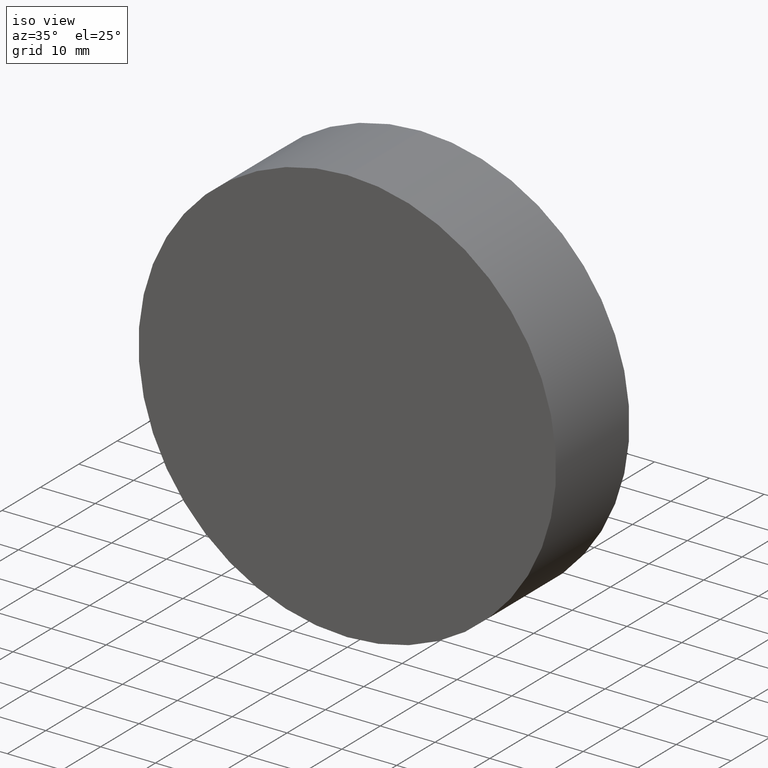
[diagram: clean part render]
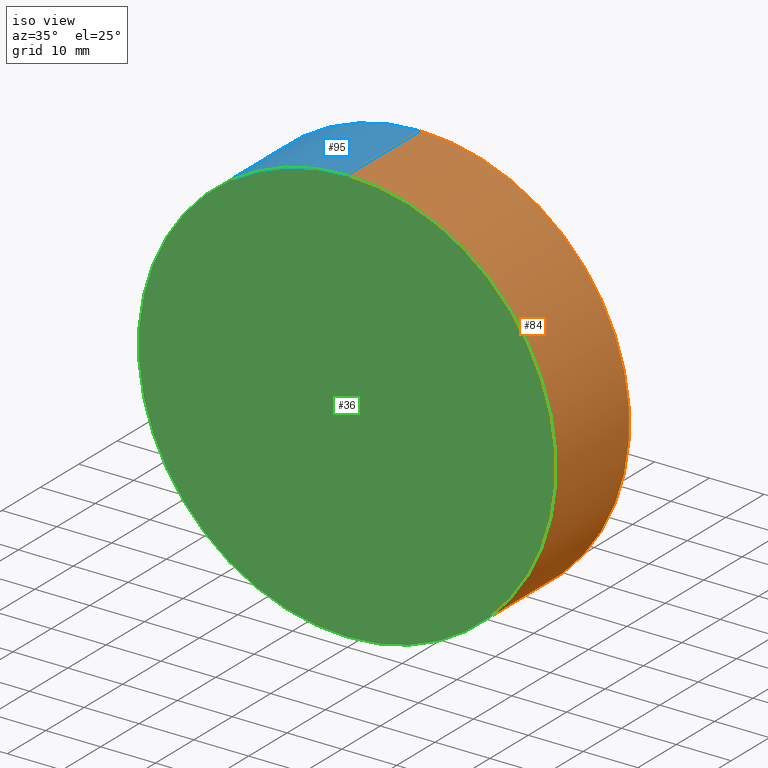
[diagram: same view with three faces highlighted in distinct colors, each labeled with its STEP entity id]
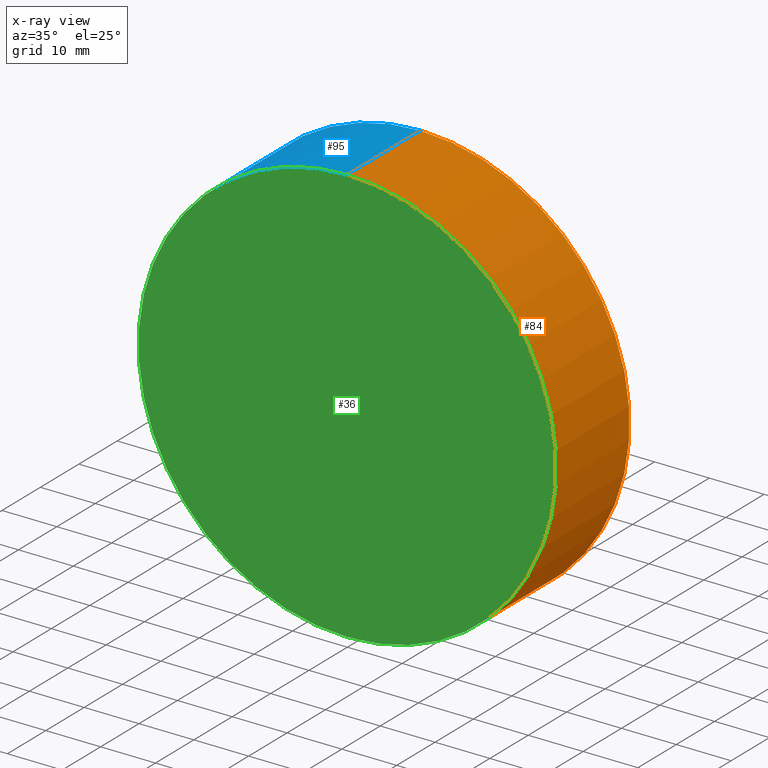
[diagram: x-ray of the same camera — body ghosted, the three highlighted faces saturated]
A machine part, iso view with three faces highlighted in distinct colors.
The next image is the same camera in x-ray (body ghosted, the three faces saturated) — at least one of them is partly hidden behind the body in this view.
Their STEP definitions:

[orange] entity #84 — the highlighted cylindrical surface (partial cylindrical patch) has radius 38.1 mm, axis along (-0, -1, -0).
#5 = DIRECTION ( 'NONE',  ( -0.0000000000000000000, -1.000000000000000000, -0.0000000000000000000 ) ) ;
#12 = VERTEX_POINT ( 'NONE', #31 ) ;
#24 = ORIENTED_EDGE ( 'NONE', *, *, #34, .T. ) ;
#25 = EDGE_CURVE ( 'NONE', #138, #96, #35, .T. ) ;
#29 = VECTOR ( 'NONE', #126, 1000.000000000000000 ) ;
#30 = CARTESIAN_POINT ( 'NONE',  ( 0.0000000000000000000, 0.0000000000000000000, 0.0000000000000000000 ) ) ;
#31 = CARTESIAN_POINT ( 'NONE',  ( 0.0000000000000000000, 0.0000000000000000000, -38.10000000000000100 ) ) ;
#34 = EDGE_CURVE ( 'NONE', #96, #12, #46, .T. ) ;
#35 = LINE ( 'NONE', #59, #99 ) ;
#41 = AXIS2_PLACEMENT_3D ( 'NONE', #120, #44, #136 ) ;
#43 = CARTESIAN_POINT ( 'NONE',  ( 0.0000000000000000000, 19.10000000000000100, -38.10000000000000100 ) ) ;
#44 = DIRECTION ( 'NONE',  ( -0.0000000000000000000, -1.000000000000000000, -0.0000000000000000000 ) ) ;
#46 = CIRCLE ( 'NONE', #49, 38.10000000000000100 ) ;
#48 = EDGE_LOOP ( 'NONE', ( #70, #131, #24, #87 ) ) ;
#49 = AXIS2_PLACEMENT_3D ( 'NONE', #30, #76, #110 ) ;
#52 = CARTESIAN_POINT ( 'NONE',  ( 4.665904304751416100E-015, 0.0000000000000000000, 38.10000000000000100 ) ) ;
#53 = DIRECTION ( 'NONE',  ( 0.0000000000000000000, 1.000000000000000000, 0.0000000000000000000 ) ) ;
#57 = LINE ( 'NONE', #79, #29 ) ;
#59 = CARTESIAN_POINT ( 'NONE',  ( 4.665904304751416100E-015, 19.10000000000000100, 38.10000000000000100 ) ) ;
#70 = ORIENTED_EDGE ( 'NONE', *, *, #71, .F. ) ;
#71 = EDGE_CURVE ( 'NONE', #138, #115, #130, .T. ) ;
#76 = DIRECTION ( 'NONE',  ( 0.0000000000000000000, 1.000000000000000000, 0.0000000000000000000 ) ) ;
#79 = CARTESIAN_POINT ( 'NONE',  ( 0.0000000000000000000, 19.10000000000000100, -38.10000000000000100 ) ) ;
#84 = ADVANCED_FACE ( 'NONE', ( #125 ), #132, .T. ) ;
#85 = DIRECTION ( 'NONE',  ( 0.0000000000000000000, 0.0000000000000000000, 1.000000000000000000 ) ) ;
#87 = ORIENTED_EDGE ( 'NONE', *, *, #129, .F. ) ;
#88 = CARTESIAN_POINT ( 'NONE',  ( 0.0000000000000000000, 19.10000000000000100, 0.0000000000000000000 ) ) ;
#90 = AXIS2_PLACEMENT_3D ( 'NONE', #88, #53, #85 ) ;
#96 = VERTEX_POINT ( 'NONE', #52 ) ;
#99 = VECTOR ( 'NONE', #5, 1000.000000000000000 ) ;
#110 = DIRECTION ( 'NONE',  ( 0.0000000000000000000, 0.0000000000000000000, 1.000000000000000000 ) ) ;
#115 = VERTEX_POINT ( 'NONE', #43 ) ;
#119 = CARTESIAN_POINT ( 'NONE',  ( 4.665904304751416100E-015, 19.10000000000000100, 38.10000000000000100 ) ) ;
#120 = CARTESIAN_POINT ( 'NONE',  ( 0.0000000000000000000, 19.10000000000000100, 0.0000000000000000000 ) ) ;
#125 = FACE_OUTER_BOUND ( 'NONE', #48, .T. ) ;
#126 = DIRECTION ( 'NONE',  ( -0.0000000000000000000, -1.000000000000000000, -0.0000000000000000000 ) ) ;
#129 = EDGE_CURVE ( 'NONE', #115, #12, #57, .T. ) ;
#130 = CIRCLE ( 'NONE', #90, 38.10000000000000100 ) ;
#131 = ORIENTED_EDGE ( 'NONE', *, *, #25, .T. ) ;
#132 = CYLINDRICAL_SURFACE ( 'NONE', #41, 38.10000000000000100 ) ;
#136 = DIRECTION ( 'NONE',  ( 0.0000000000000000000, 0.0000000000000000000, -1.000000000000000000 ) ) ;
#138 = VERTEX_POINT ( 'NONE', #119 ) ;

[blue] entity #95 — the highlighted cylindrical surface (partial cylindrical patch) has radius 38.1 mm, axis along (-0, -1, -0).
#5 = DIRECTION ( 'NONE',  ( -0.0000000000000000000, -1.000000000000000000, -0.0000000000000000000 ) ) ;
#6 = DIRECTION ( 'NONE',  ( 0.0000000000000000000, 1.000000000000000000, 0.0000000000000000000 ) ) ;
#7 = DIRECTION ( 'NONE',  ( 0.0000000000000000000, 0.0000000000000000000, 1.000000000000000000 ) ) ;
#9 = ORIENTED_EDGE ( 'NONE', *, *, #81, .F. ) ;
#12 = VERTEX_POINT ( 'NONE', #31 ) ;
#13 = CIRCLE ( 'NONE', #140, 38.10000000000000100 ) ;
#15 = CARTESIAN_POINT ( 'NONE',  ( 0.0000000000000000000, 0.0000000000000000000, 0.0000000000000000000 ) ) ;
#16 = AXIS2_PLACEMENT_3D ( 'NONE', #62, #51, #63 ) ;
#25 = EDGE_CURVE ( 'NONE', #138, #96, #35, .T. ) ;
#29 = VECTOR ( 'NONE', #126, 1000.000000000000000 ) ;
#31 = CARTESIAN_POINT ( 'NONE',  ( 0.0000000000000000000, 0.0000000000000000000, -38.10000000000000100 ) ) ;
#35 = LINE ( 'NONE', #59, #99 ) ;
#43 = CARTESIAN_POINT ( 'NONE',  ( 0.0000000000000000000, 19.10000000000000100, -38.10000000000000100 ) ) ;
#51 = DIRECTION ( 'NONE',  ( -0.0000000000000000000, -1.000000000000000000, -0.0000000000000000000 ) ) ;
#52 = CARTESIAN_POINT ( 'NONE',  ( 4.665904304751416100E-015, 0.0000000000000000000, 38.10000000000000100 ) ) ;
#54 = ORIENTED_EDGE ( 'NONE', *, *, #111, .T. ) ;
#56 = EDGE_LOOP ( 'NONE', ( #114, #9, #109, #54 ) ) ;
#57 = LINE ( 'NONE', #79, #29 ) ;
#59 = CARTESIAN_POINT ( 'NONE',  ( 4.665904304751416100E-015, 19.10000000000000100, 38.10000000000000100 ) ) ;
#61 = DIRECTION ( 'NONE',  ( 0.0000000000000000000, 0.0000000000000000000, 1.000000000000000000 ) ) ;
#62 = CARTESIAN_POINT ( 'NONE',  ( 0.0000000000000000000, 19.10000000000000100, 0.0000000000000000000 ) ) ;
#63 = DIRECTION ( 'NONE',  ( 0.0000000000000000000, 0.0000000000000000000, -1.000000000000000000 ) ) ;
#73 = CARTESIAN_POINT ( 'NONE',  ( 0.0000000000000000000, 19.10000000000000100, 0.0000000000000000000 ) ) ;
#79 = CARTESIAN_POINT ( 'NONE',  ( 0.0000000000000000000, 19.10000000000000100, -38.10000000000000100 ) ) ;
#80 = CIRCLE ( 'NONE', #124, 38.10000000000000100 ) ;
#81 = EDGE_CURVE ( 'NONE', #115, #138, #13, .T. ) ;
#82 = CYLINDRICAL_SURFACE ( 'NONE', #16, 38.10000000000000100 ) ;
#95 = ADVANCED_FACE ( 'NONE', ( #104 ), #82, .T. ) ;
#96 = VERTEX_POINT ( 'NONE', #52 ) ;
#99 = VECTOR ( 'NONE', #5, 1000.000000000000000 ) ;
#104 = FACE_OUTER_BOUND ( 'NONE', #56, .T. ) ;
#109 = ORIENTED_EDGE ( 'NONE', *, *, #129, .T. ) ;
#111 = EDGE_CURVE ( 'NONE', #12, #96, #80, .T. ) ;
#114 = ORIENTED_EDGE ( 'NONE', *, *, #25, .F. ) ;
#115 = VERTEX_POINT ( 'NONE', #43 ) ;
#117 = DIRECTION ( 'NONE',  ( 0.0000000000000000000, 1.000000000000000000, 0.0000000000000000000 ) ) ;
#119 = CARTESIAN_POINT ( 'NONE',  ( 4.665904304751416100E-015, 19.10000000000000100, 38.10000000000000100 ) ) ;
#124 = AXIS2_PLACEMENT_3D ( 'NONE', #15, #6, #7 ) ;
#126 = DIRECTION ( 'NONE',  ( -0.0000000000000000000, -1.000000000000000000, -0.0000000000000000000 ) ) ;
#129 = EDGE_CURVE ( 'NONE', #115, #12, #57, .T. ) ;
#138 = VERTEX_POINT ( 'NONE', #119 ) ;
#140 = AXIS2_PLACEMENT_3D ( 'NONE', #73, #117, #61 ) ;

[green] entity #36 — the highlighted planar face has unit normal (0, 1, 0).
#1 = ORIENTED_EDGE ( 'NONE', *, *, #111, .F. ) ;
#6 = DIRECTION ( 'NONE',  ( 0.0000000000000000000, 1.000000000000000000, 0.0000000000000000000 ) ) ;
#7 = DIRECTION ( 'NONE',  ( 0.0000000000000000000, 0.0000000000000000000, 1.000000000000000000 ) ) ;
#11 = EDGE_LOOP ( 'NONE', ( #1, #64 ) ) ;
#12 = VERTEX_POINT ( 'NONE', #31 ) ;
#15 = CARTESIAN_POINT ( 'NONE',  ( 0.0000000000000000000, 0.0000000000000000000, 0.0000000000000000000 ) ) ;
#30 = CARTESIAN_POINT ( 'NONE',  ( 0.0000000000000000000, 0.0000000000000000000, 0.0000000000000000000 ) ) ;
#31 = CARTESIAN_POINT ( 'NONE',  ( 0.0000000000000000000, 0.0000000000000000000, -38.10000000000000100 ) ) ;
#34 = EDGE_CURVE ( 'NONE', #96, #12, #46, .T. ) ;
#36 = ADVANCED_FACE ( 'NONE', ( #72 ), #137, .F. ) ;
#46 = CIRCLE ( 'NONE', #49, 38.10000000000000100 ) ;
#49 = AXIS2_PLACEMENT_3D ( 'NONE', #30, #76, #110 ) ;
#52 = CARTESIAN_POINT ( 'NONE',  ( 4.665904304751416100E-015, 0.0000000000000000000, 38.10000000000000100 ) ) ;
#55 = AXIS2_PLACEMENT_3D ( 'NONE', #78, #101, #91 ) ;
#64 = ORIENTED_EDGE ( 'NONE', *, *, #34, .F. ) ;
#72 = FACE_OUTER_BOUND ( 'NONE', #11, .T. ) ;
#76 = DIRECTION ( 'NONE',  ( 0.0000000000000000000, 1.000000000000000000, 0.0000000000000000000 ) ) ;
#78 = CARTESIAN_POINT ( 'NONE',  ( 0.0000000000000000000, 0.0000000000000000000, 0.0000000000000000000 ) ) ;
#80 = CIRCLE ( 'NONE', #124, 38.10000000000000100 ) ;
#91 = DIRECTION ( 'NONE',  ( 0.0000000000000000000, -0.0000000000000000000, 1.000000000000000000 ) ) ;
#96 = VERTEX_POINT ( 'NONE', #52 ) ;
#101 = DIRECTION ( 'NONE',  ( 0.0000000000000000000, 1.000000000000000000, 0.0000000000000000000 ) ) ;
#110 = DIRECTION ( 'NONE',  ( 0.0000000000000000000, 0.0000000000000000000, 1.000000000000000000 ) ) ;
#111 = EDGE_CURVE ( 'NONE', #12, #96, #80, .T. ) ;
#124 = AXIS2_PLACEMENT_3D ( 'NONE', #15, #6, #7 ) ;
#137 = PLANE ( 'NONE',  #55 ) ;